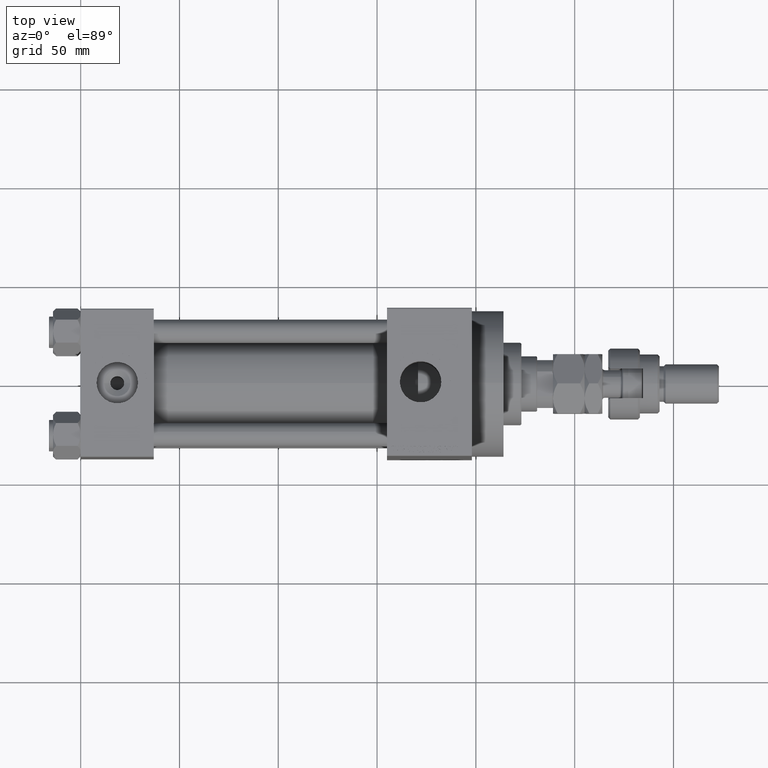
[diagram: clean part render]
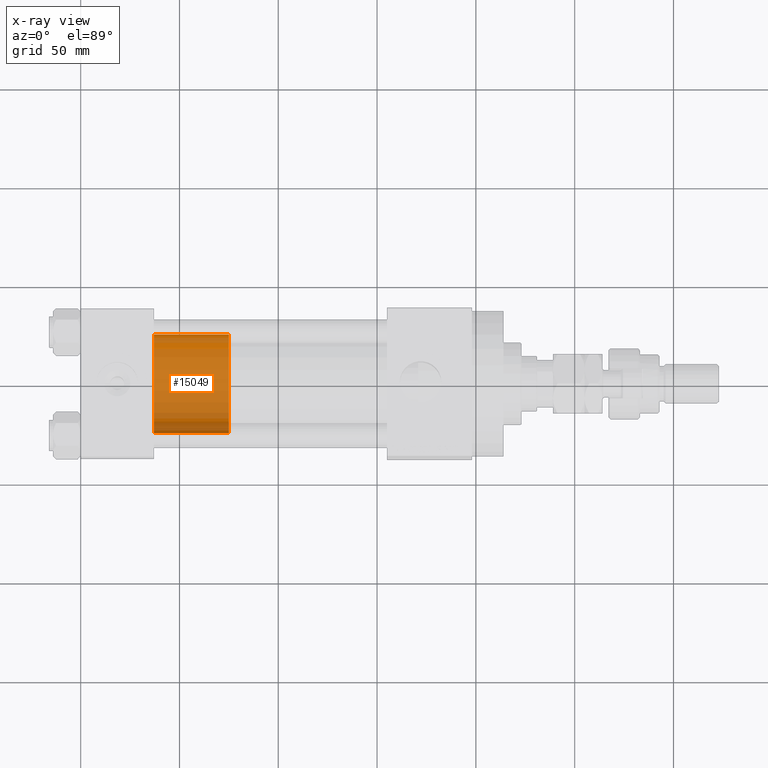
[diagram: x-ray — body ghosted, one internal face saturated and labeled with its STEP entity id]
A machine part, top view, then the same camera in x-ray: the body is ghosted and one INTERNAL B-rep face — a face not visible from any outside direction — is saturated and labeled: STEP entity #15049.
In plain terms, the highlighted cylindrical surface (partial cylindrical patch) has radius 25 mm, axis along (-1, 0, 0).
Its self-contained STEP definition (entity closure, byte-faithful):
#47 = ORIENTED_EDGE ( 'NONE', *, *, #39017, .F. ) ;
#379 = DIRECTION ( 'NONE',  ( -0.000000000000000000, -0.000000000000000000, -1.000000000000000000 ) ) ;
#1908 = DIRECTION ( 'NONE',  ( -0.000000000000000000, -0.000000000000000000, -1.000000000000000000 ) ) ;
#4591 = VERTEX_POINT ( 'NONE', #26244 ) ;
#9423 = DIRECTION ( 'NONE',  ( -1.000000000000000000, 0.000000000000000000, 0.000000000000000000 ) ) ;
#10033 = CARTESIAN_POINT ( 'NONE',  ( 25.00000000000000000, 3.061616997868383043E-15, 38.00000000000000000 ) ) ;
#10480 = VERTEX_POINT ( 'NONE', #37187 ) ;
#14007 = DIRECTION ( 'NONE',  ( 0.000000000000000000, 0.000000000000000000, 1.000000000000000000 ) ) ;
#14443 = CIRCLE ( 'NONE', #42850, 25.00000000000000000 ) ;
#15049 = ADVANCED_FACE ( 'NONE', ( #28240 ), #39914, .T. ) ;
#15173 = ORIENTED_EDGE ( 'NONE', *, *, #48493, .F. ) ;
#18020 = VERTEX_POINT ( 'NONE', #34580 ) ;
#19536 = AXIS2_PLACEMENT_3D ( 'NONE', #33062, #37616, #9423 ) ;
#19823 = EDGE_CURVE ( 'NONE', #26124, #18020, #21740, .T. ) ;
#21740 = LINE ( 'NONE', #10033, #33372 ) ;
#26124 = VERTEX_POINT ( 'NONE', #46450 ) ;
#26244 = CARTESIAN_POINT ( 'NONE',  ( -25.00000000000000000, 0.000000000000000000, 0.000000000000000000 ) ) ;
#26476 = CIRCLE ( 'NONE', #32163, 25.00000000000000000 ) ;
#28240 = FACE_OUTER_BOUND ( 'NONE', #33890, .T. ) ;
#29643 = ORIENTED_EDGE ( 'NONE', *, *, #19823, .T. ) ;
#32163 = AXIS2_PLACEMENT_3D ( 'NONE', #33820, #49295, #34562 ) ;
#33062 = CARTESIAN_POINT ( 'NONE',  ( 0.000000000000000000, 0.000000000000000000, 38.00000000000000000 ) ) ;
#33326 = CARTESIAN_POINT ( 'NONE',  ( 0.000000000000000000, 0.000000000000000000, 38.00000000000000000 ) ) ;
#33372 = VECTOR ( 'NONE', #1908, 1000.000000000000000 ) ;
#33820 = CARTESIAN_POINT ( 'NONE',  ( 0.000000000000000000, 0.000000000000000000, 0.000000000000000000 ) ) ;
#33890 = EDGE_LOOP ( 'NONE', ( #47, #29643, #42328, #15173 ) ) ;
#34562 = DIRECTION ( 'NONE',  ( 1.000000000000000000, 0.000000000000000000, 0.000000000000000000 ) ) ;
#34580 = CARTESIAN_POINT ( 'NONE',  ( 25.00000000000000000, 3.061616997868383043E-15, 0.000000000000000000 ) ) ;
#34937 = EDGE_CURVE ( 'NONE', #18020, #4591, #26476, .T. ) ;
#37187 = CARTESIAN_POINT ( 'NONE',  ( -25.00000000000000000, 0.000000000000000000, 38.00000000000000000 ) ) ;
#37616 = DIRECTION ( 'NONE',  ( -0.000000000000000000, -0.000000000000000000, -1.000000000000000000 ) ) ;
#39017 = EDGE_CURVE ( 'NONE', #26124, #10480, #14443, .T. ) ;
#39914 = CYLINDRICAL_SURFACE ( 'NONE', #19536, 25.00000000000000000 ) ;
#42328 = ORIENTED_EDGE ( 'NONE', *, *, #34937, .T. ) ;
#42850 = AXIS2_PLACEMENT_3D ( 'NONE', #33326, #14007, #49567 ) ;
#43073 = CARTESIAN_POINT ( 'NONE',  ( -25.00000000000000000, 0.000000000000000000, 38.00000000000000000 ) ) ;
#45384 = VECTOR ( 'NONE', #379, 1000.000000000000000 ) ;
#46450 = CARTESIAN_POINT ( 'NONE',  ( 25.00000000000000000, 3.061616997868383043E-15, 38.00000000000000000 ) ) ;
#46872 = LINE ( 'NONE', #43073, #45384 ) ;
#48493 = EDGE_CURVE ( 'NONE', #10480, #4591, #46872, .T. ) ;
#49295 = DIRECTION ( 'NONE',  ( 0.000000000000000000, 0.000000000000000000, 1.000000000000000000 ) ) ;
#49567 = DIRECTION ( 'NONE',  ( 1.000000000000000000, 0.000000000000000000, 0.000000000000000000 ) ) ;